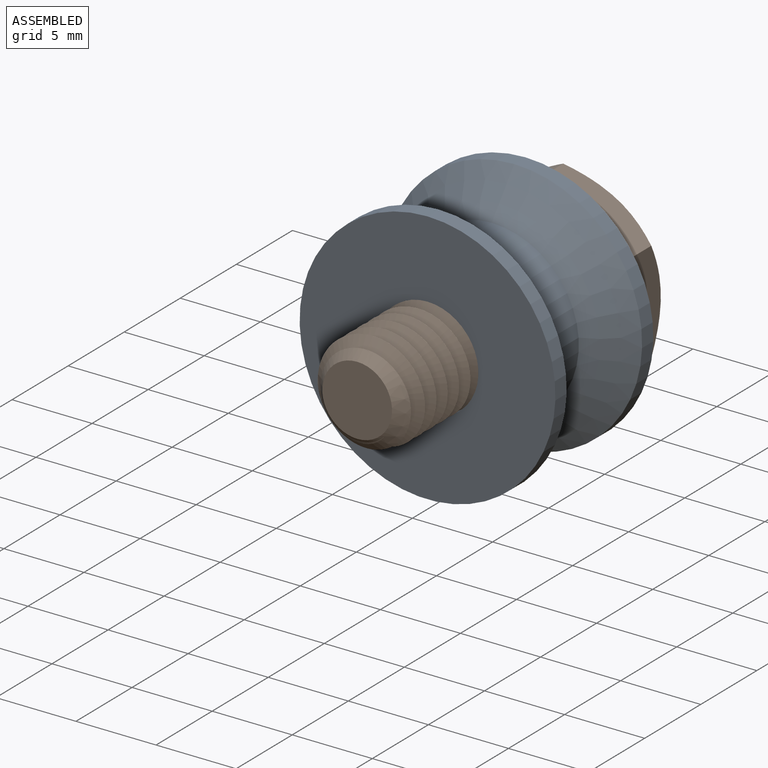
[diagram: assembled view]
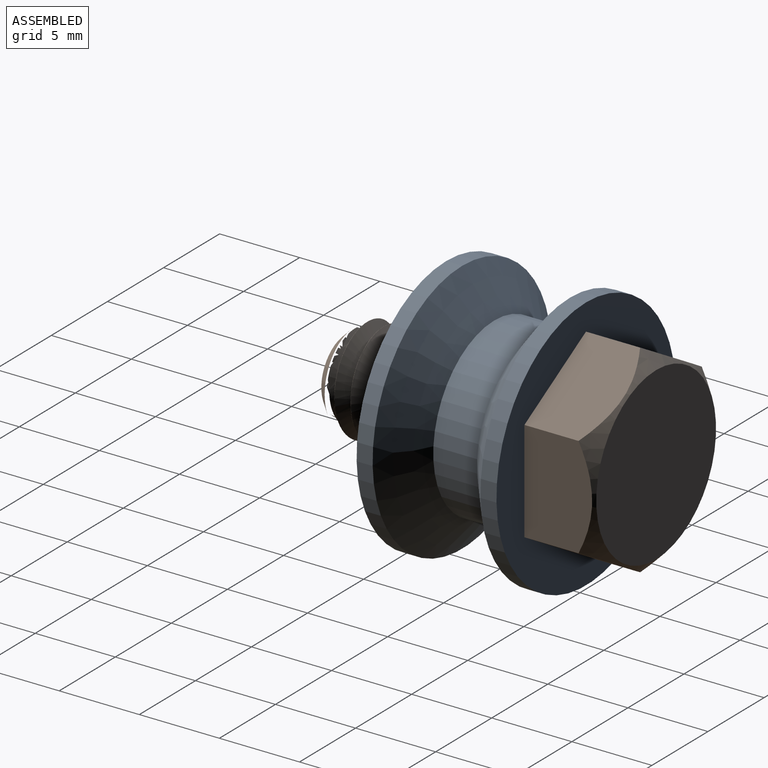
[diagram: assembled view, second angle]
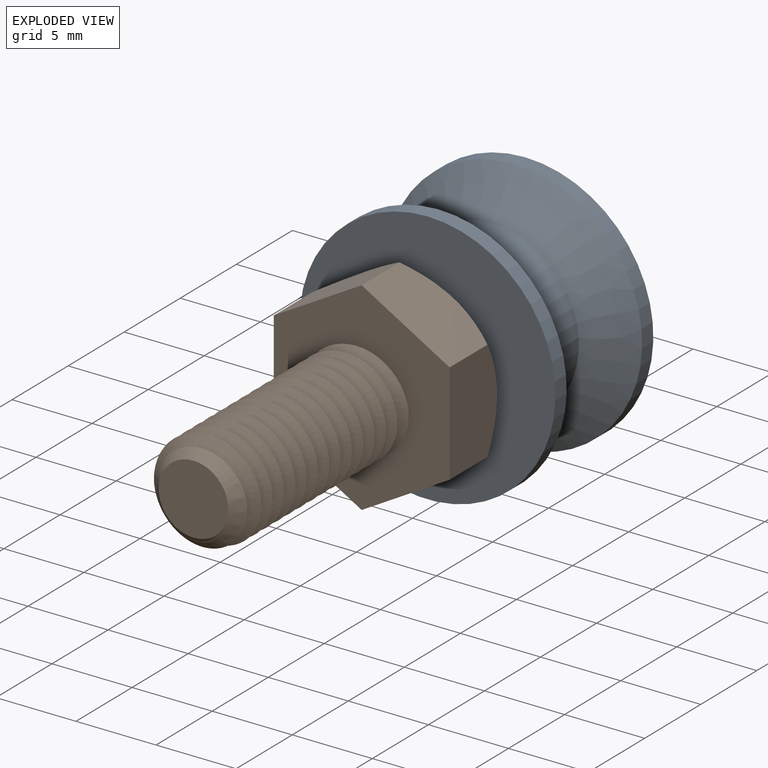
[diagram: exploded view]
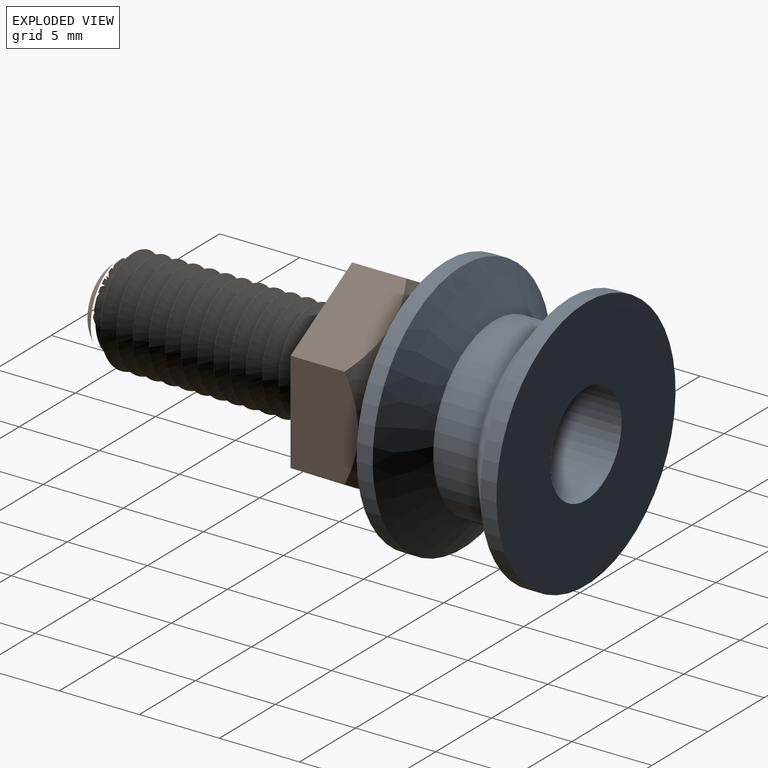
[diagram: exploded view, second angle]
ASSEMBLY  parts=2 mates=2
PART A: 8 faces, bbox 16x8.7x16 mm
  f0: cylinder r=7.99mm len=15.97mm, axis (0,1,0), area 50.2mm2, adj f1,f7
  f1: plane 15.97x15.97mm, normal (0,-1,0), area 168.6mm2, adj f0,f2
  f2: cylinder r=3.17mm len=8.73mm, axis (0,1,0), area 174.2mm2, adj f1,f3
  f3: plane 15.97x15.97mm, normal (0,1,0), area 168.6mm2, adj f2,f4
  f4: cylinder r=7.99mm len=15.97mm, axis (0,1,0), area 50.2mm2, adj f3,f5
  f5: cone r=7.99mm half-angle=51.9deg, axis (0,1,0), area 136.6mm2, adj f4,f6
  f6: cylinder r=5.43mm len=10.87mm, axis (0,1,0), area 93.2mm2, adj f5,f7
  f7: cone r=5.43mm half-angle=51.9deg, axis (0,-1,0), area 136.6mm2, adj f0,f6
PART B: 14 faces, bbox 13.4x20.6x13.4 mm
  f0: plane 6.35x4.23mm, normal (-1,0,0), area 25mm2, adj f1,f5,f11,f12
  f1: plane 5.49x4.23mm, normal (-0.5,0,-0.87), area 25mm2, adj f0,f2,f11,f12
  f2: plane 5.49x4.23mm, normal (0.5,0,-0.87), area 25mm2, adj f1,f3,f11,f12
  f3: plane 6.35x4.23mm, normal (1,0,0), area 25mm2, adj f2,f4,f11,f12
  f4: plane 5.49x4.23mm, normal (0.5,0,0.87), area 25mm2, adj f3,f5,f11,f12
  f5: plane 5.49x4.23mm, normal (-0.5,0,0.87), area 25mm2, adj f0,f4,f11,f12
  f6: cylinder r=3.17mm len=14mm, axis (0,1,0), area -2.3mm2, adj f8,f9,f10,f11
  f7: plane 4.35x4.35mm, normal (0,-1,0), area 14.9mm2, adj f8
  f8: cone r=2.17mm half-angle=45deg, axis (0,1,0), area 12.8mm2, adj f6,f7,f9,f10
  f9: bspline ~16.16x7.33mm, area 238.8mm2, adj f6,f8,f10,f11
  f10: bspline ~15.65x7.33mm, area 243.9mm2, adj f6,f8,f9,f11
  f11: plane 13.39x11.69mm, normal (0,-1,0), area 80.5mm2, adj f0,f1,f2,f3,f4,f5,f6,f9
  f12: cone r=5.34mm half-angle=45deg, axis (0,-1,0), area 21mm2, adj f0,f1,f2,f3,f4,f5,f13
  f13: plane 10.68x10.68mm, normal (0,1,0), area 89.6mm2, adj f12
PLACE A t=(-0.14,5.28,-11.13)mm
PLACE B t=(-0.14,5.28,-11.13)mm
MATE cylindrical A.f0 <-> B.f6  axis (0,1,0) through (-0.14,-3.45,-11.13)mm
MATE planar A.f0 <-> B.f11  axis (0,1,0) through (-0.14,5.28,-11.13)mm
